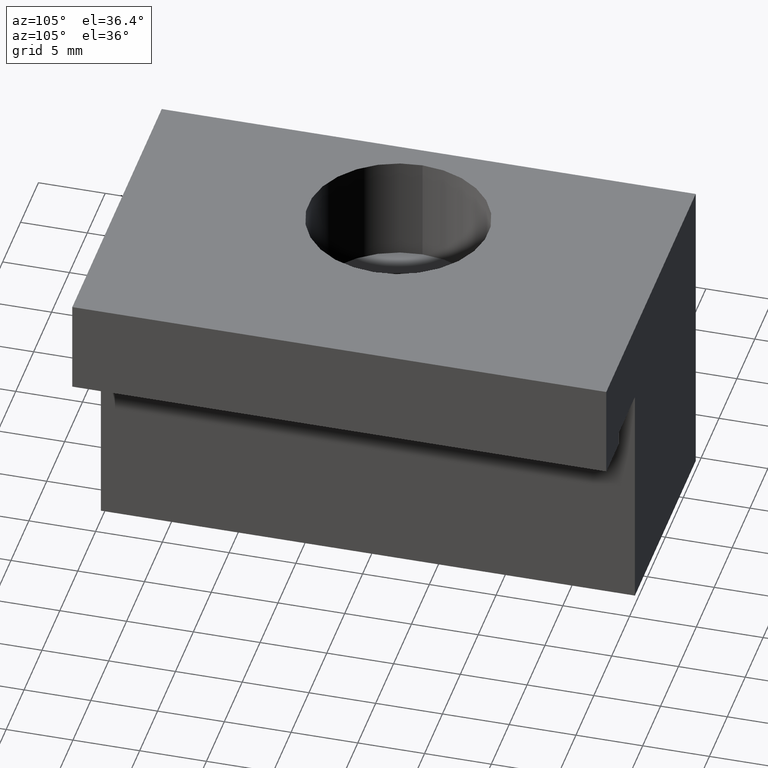
[diagram: clean part render]
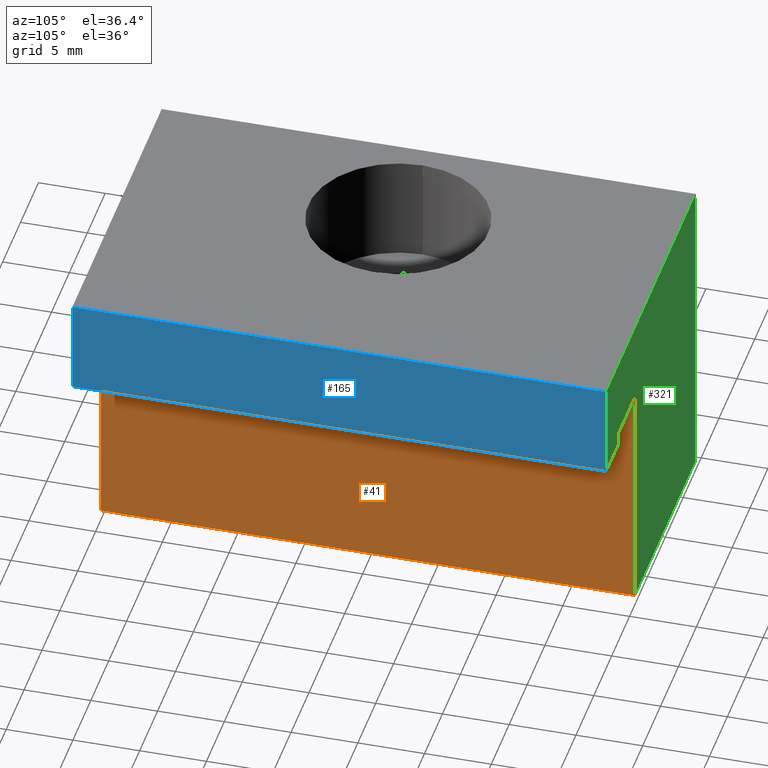
[diagram: same view with three faces highlighted in distinct colors, each labeled with its STEP entity id]
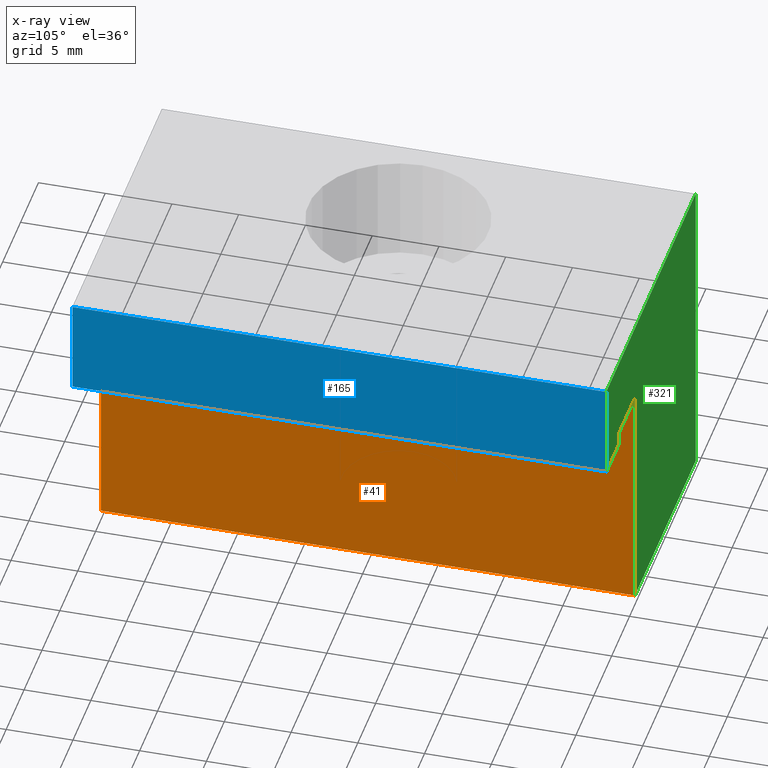
[diagram: x-ray of the same camera — body ghosted, the three highlighted faces saturated]
A machine part, auxiliary view with three faces highlighted in distinct colors.
The next image is the same camera in x-ray (body ghosted, the three faces saturated) — at least one of them is partly hidden behind the body in this view.
Their STEP definitions:

[orange] entity #41 — the highlighted planar face has unit normal (-1, 0, 0).
#2=CARTESIAN_POINT('',(8.499999999967258,-19.999999999919964,1.224647E-015));
#3=DIRECTION('',(-1.0,0.0,0.0));
#4=DIRECTION('',(0.0,0.0,1.0));
#5=AXIS2_PLACEMENT_3D('',#2,#3,#4);
#6=PLANE('',#5);
#7=CARTESIAN_POINT('',(8.499999999967258,-19.999999999919964,1.224647E-015));
#8=VERTEX_POINT('',#7);
#9=CARTESIAN_POINT('',(8.499999999967258,19.999999999919964,-1.224647E-015));
#10=VERTEX_POINT('',#9);
#11=CARTESIAN_POINT('',(8.499999999967258,-19.999999999919964,1.224647E-015));
#12=DIRECTION('',(0.0,1.0,0.0));
#13=VECTOR('',#12,39.999999999839929);
#14=LINE('',#11,#13);
#15=EDGE_CURVE('',#8,#10,#14,.T.);
#16=ORIENTED_EDGE('',*,*,#15,.T.);
#17=CARTESIAN_POINT('',(8.499999999967258,19.999999999919964,17.849999846508581));
#18=VERTEX_POINT('',#17);
#19=CARTESIAN_POINT('',(8.499999999967258,19.999999999919964,0.0));
#20=DIRECTION('',(0.0,0.0,1.0));
#21=VECTOR('',#20,17.849999846508581);
#22=LINE('',#19,#21);
#23=EDGE_CURVE('',#10,#18,#22,.T.);
#24=ORIENTED_EDGE('',*,*,#23,.T.);
#25=CARTESIAN_POINT('',(8.499999999967258,-19.999999999919964,17.849999846508581));
#26=VERTEX_POINT('',#25);
#27=CARTESIAN_POINT('',(8.499999999967258,-19.999999999919964,17.849999846508581));
#28=DIRECTION('',(0.0,1.0,0.0));
#29=VECTOR('',#28,39.999999999839929);
#30=LINE('',#27,#29);
#31=EDGE_CURVE('',#26,#18,#30,.T.);
#32=ORIENTED_EDGE('',*,*,#31,.F.);
#33=CARTESIAN_POINT('',(8.499999999967258,-19.999999999919964,0.0));
#34=DIRECTION('',(0.0,0.0,1.0));
#35=VECTOR('',#34,17.849999846508581);
#36=LINE('',#33,#35);
#37=EDGE_CURVE('',#8,#26,#36,.T.);
#38=ORIENTED_EDGE('',*,*,#37,.F.);
#39=EDGE_LOOP('',(#16,#24,#32,#38));
#40=FACE_OUTER_BOUND('',#39,.T.);
#41=ADVANCED_FACE('',(#40),#6,.F.);

[blue] entity #165 — the highlighted planar face has unit normal (-1, 0, 0).
#110=CARTESIAN_POINT('',(16.499999999934516,19.999999999919964,16.849999720166124));
#111=VERTEX_POINT('',#110);
#118=CARTESIAN_POINT('',(16.499999999934516,-19.999999999919964,16.849999720166124));
#119=VERTEX_POINT('',#118);
#120=CARTESIAN_POINT('',(16.499999999934516,-19.999999999919964,16.849999720166124));
#121=DIRECTION('',(0.0,1.0,0.0));
#122=VECTOR('',#121,39.999999999839929);
#123=LINE('',#120,#122);
#124=EDGE_CURVE('',#119,#111,#123,.T.);
#135=CARTESIAN_POINT('',(16.499999999934516,-19.999999999919964,16.849999720166124));
#136=DIRECTION('',(-1.0,0.0,0.0));
#137=DIRECTION('',(0.0,0.0,1.0));
#138=AXIS2_PLACEMENT_3D('',#135,#136,#137);
#139=PLANE('',#138);
#140=ORIENTED_EDGE('',*,*,#124,.T.);
#141=CARTESIAN_POINT('',(16.499999999934516,19.999999999919964,23.999999625544660));
#142=VERTEX_POINT('',#141);
#143=CARTESIAN_POINT('',(16.499999999934516,19.999999999919964,16.849999720166124));
#144=DIRECTION('',(0.0,0.0,1.0));
#145=VECTOR('',#144,7.149999905378536);
#146=LINE('',#143,#145);
#147=EDGE_CURVE('',#111,#142,#146,.T.);
#148=ORIENTED_EDGE('',*,*,#147,.T.);
#149=CARTESIAN_POINT('',(16.499999999934516,-19.999999999919964,23.999999625544660));
#150=VERTEX_POINT('',#149);
#151=CARTESIAN_POINT('',(16.499999999934516,-19.999999999919964,23.999999625544660));
#152=DIRECTION('',(0.0,1.0,0.0));
#153=VECTOR('',#152,39.999999999839929);
#154=LINE('',#151,#153);
#155=EDGE_CURVE('',#150,#142,#154,.T.);
#156=ORIENTED_EDGE('',*,*,#155,.F.);
#157=CARTESIAN_POINT('',(16.499999999934516,-19.999999999919964,16.849999720166124));
#158=DIRECTION('',(0.0,0.0,1.0));
#159=VECTOR('',#158,7.149999905378536);
#160=LINE('',#157,#159);
#161=EDGE_CURVE('',#119,#150,#160,.T.);
#162=ORIENTED_EDGE('',*,*,#161,.F.);
#163=EDGE_LOOP('',(#140,#148,#156,#162));
#164=FACE_OUTER_BOUND('',#163,.T.);
#165=ADVANCED_FACE('',(#164),#139,.F.);

[green] entity #321 — the highlighted planar face has unit normal (0, -1, 0).
#9=CARTESIAN_POINT('',(8.499999999967258,19.999999999919964,-1.224647E-015));
#10=VERTEX_POINT('',#9);
#17=CARTESIAN_POINT('',(8.499999999967258,19.999999999919964,17.849999846508581));
#18=VERTEX_POINT('',#17);
#19=CARTESIAN_POINT('',(8.499999999967258,19.999999999919964,0.0));
#20=DIRECTION('',(0.0,0.0,1.0));
#21=VECTOR('',#20,17.849999846508581);
#22=LINE('',#19,#21);
#23=EDGE_CURVE('',#10,#18,#22,.T.);
#48=CARTESIAN_POINT('',(12.999999999949068,19.999999999919964,17.849999846508581));
#49=VERTEX_POINT('',#48);
#50=CARTESIAN_POINT('',(8.499999999967258,19.999999999919964,17.849999846508581));
#51=DIRECTION('',(1.0,0.0,0.0));
#52=VECTOR('',#51,4.499999999981810);
#53=LINE('',#50,#52);
#54=EDGE_CURVE('',#18,#49,#53,.T.);
#79=CARTESIAN_POINT('',(12.999999999949068,19.999999999919964,16.849999720166124));
#80=VERTEX_POINT('',#79);
#81=CARTESIAN_POINT('',(12.999999999949068,19.999999999919964,17.849999846508581));
#82=DIRECTION('',(0.0,0.0,-1.0));
#83=VECTOR('',#82,1.000000126342457);
#84=LINE('',#81,#83);
#85=EDGE_CURVE('',#49,#80,#84,.T.);
#110=CARTESIAN_POINT('',(16.499999999934516,19.999999999919964,16.849999720166124));
#111=VERTEX_POINT('',#110);
#112=CARTESIAN_POINT('',(12.999999999949068,19.999999999919964,16.849999720166124));
#113=DIRECTION('',(1.0,0.0,0.0));
#114=VECTOR('',#113,3.499999999985448);
#115=LINE('',#112,#114);
#116=EDGE_CURVE('',#80,#111,#115,.T.);
#141=CARTESIAN_POINT('',(16.499999999934516,19.999999999919964,23.999999625544660));
#142=VERTEX_POINT('',#141);
#143=CARTESIAN_POINT('',(16.499999999934516,19.999999999919964,16.849999720166124));
#144=DIRECTION('',(0.0,0.0,1.0));
#145=VECTOR('',#144,7.149999905378536);
#146=LINE('',#143,#145);
#147=EDGE_CURVE('',#111,#142,#146,.T.);
#172=CARTESIAN_POINT('',(-8.499999999967258,19.999999999919964,23.999999625544660));
#173=VERTEX_POINT('',#172);
#174=CARTESIAN_POINT('',(16.499999999934516,19.999999999919964,23.999999625544660));
#175=DIRECTION('',(-1.0,0.0,0.0));
#176=VECTOR('',#175,24.999999999901775);
#177=LINE('',#174,#176);
#178=EDGE_CURVE('',#142,#173,#177,.T.);
#223=CARTESIAN_POINT('',(-8.499999999963620,19.999999999919964,-1.224647E-015));
#224=VERTEX_POINT('',#223);
#225=CARTESIAN_POINT('',(-8.499999999967258,19.999999999919964,23.999999625544660));
#226=DIRECTION('',(0.0,0.0,-1.0));
#227=VECTOR('',#226,23.999999625544660);
#228=LINE('',#225,#227);
#229=EDGE_CURVE('',#173,#224,#228,.T.);
#260=CARTESIAN_POINT('',(-8.499999999963620,19.999999999919964,-1.224647E-015));
#261=DIRECTION('',(1.0,0.0,0.0));
#262=VECTOR('',#261,16.999999999930878);
#263=LINE('',#260,#262);
#264=EDGE_CURVE('',#224,#10,#263,.T.);
#306=CARTESIAN_POINT('',(-11.000004773675755,19.999999999919964,-2.400004736280609));
#307=DIRECTION('',(0.0,-1.0,0.0));
#308=DIRECTION('',(1.0,0.0,0.0));
#309=AXIS2_PLACEMENT_3D('',#306,#307,#308);
#310=PLANE('',#309);
#311=ORIENTED_EDGE('',*,*,#264,.F.);
#312=ORIENTED_EDGE('',*,*,#229,.F.);
#313=ORIENTED_EDGE('',*,*,#178,.F.);
#314=ORIENTED_EDGE('',*,*,#147,.F.);
#315=ORIENTED_EDGE('',*,*,#116,.F.);
#316=ORIENTED_EDGE('',*,*,#85,.F.);
#317=ORIENTED_EDGE('',*,*,#54,.F.);
#318=ORIENTED_EDGE('',*,*,#23,.F.);
#319=EDGE_LOOP('',(#311,#312,#313,#314,#315,#316,#317,#318));
#320=FACE_OUTER_BOUND('',#319,.T.);
#321=ADVANCED_FACE('',(#320),#310,.F.);